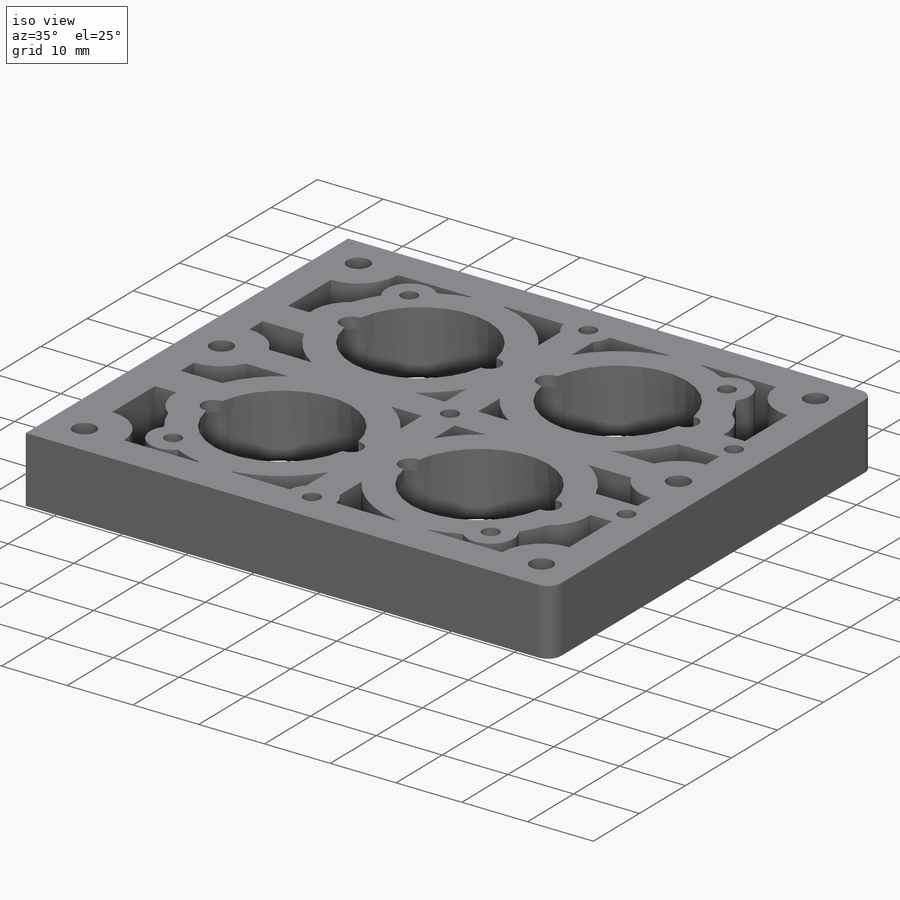
[diagram: iso view]
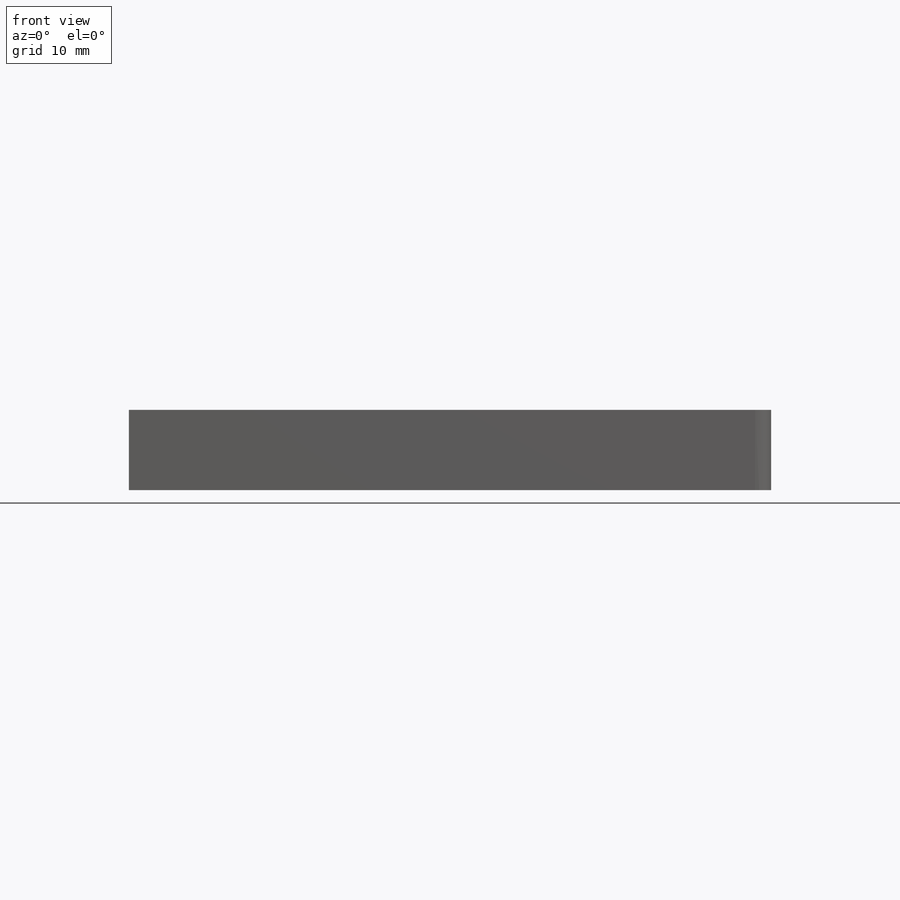
[diagram: front view]
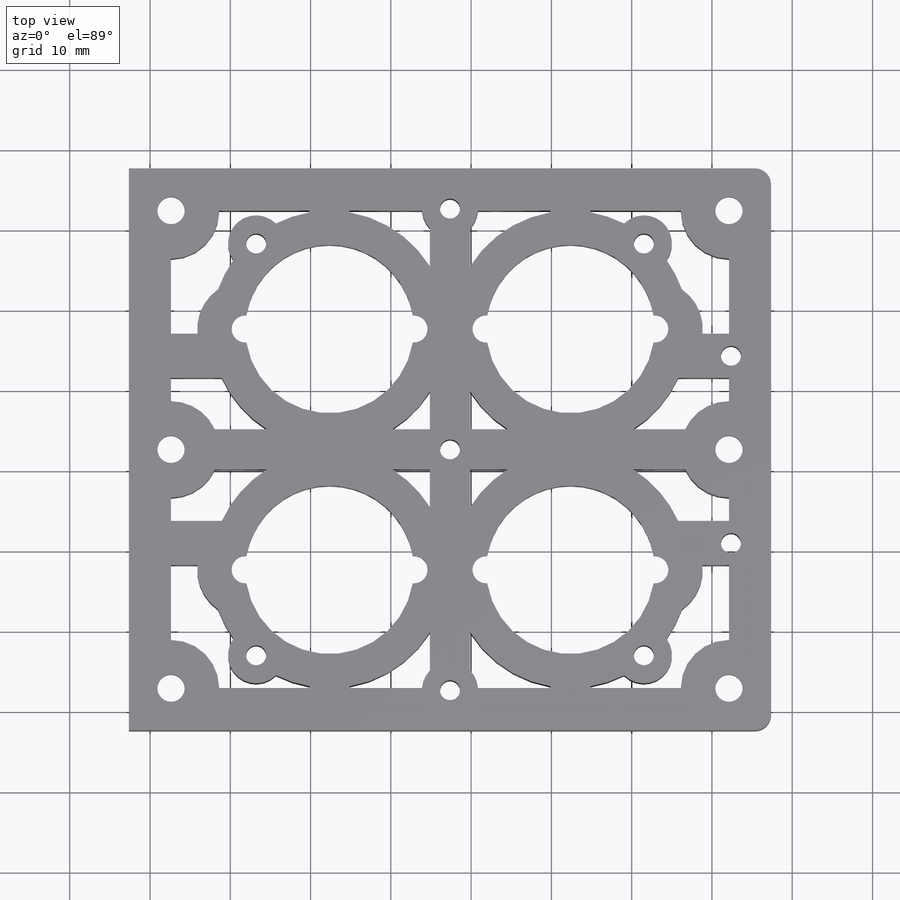
[diagram: top view]
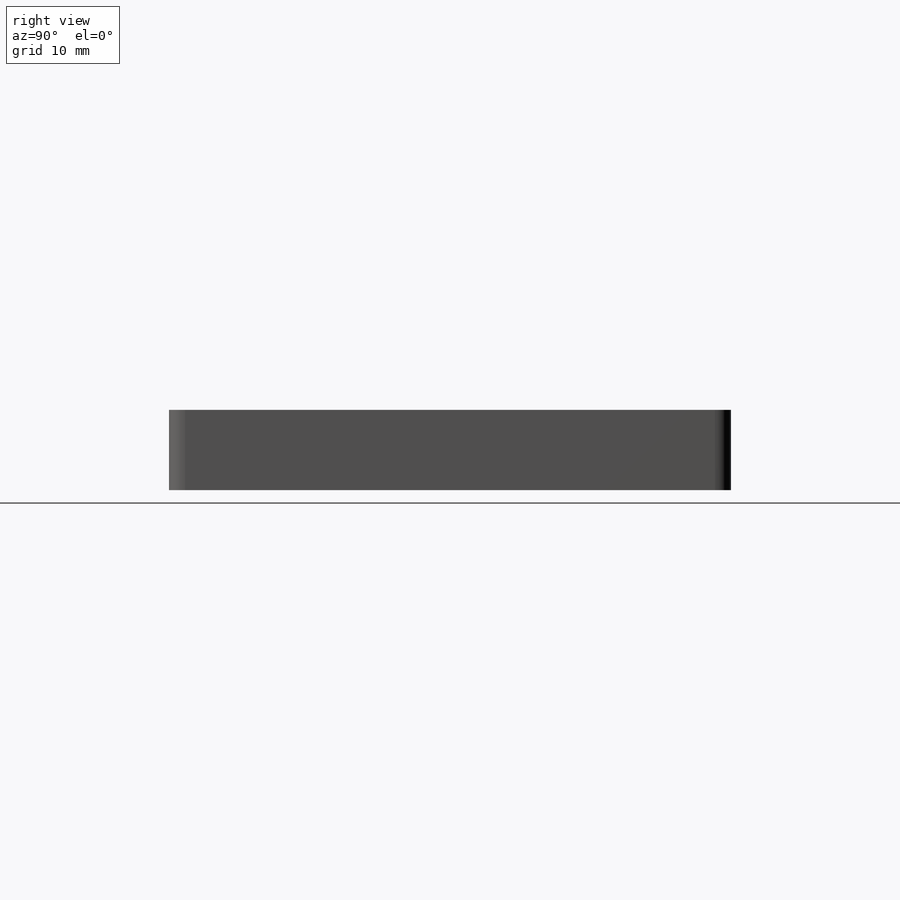
[diagram: right view]
SOLIDWORKS PART (.sldprt)
format: sldprt  version: not decoded by parser v0  size: 777,216 bytes
history: native  units: mm
features: sketch x18, hole x5, cut_extrude x2, fillet x2, material x1, extrude x1 (+11 scaffold rows collapsed)
feature tree (40):
  scaffold x11  (default folders/planes/origin — collapsed)
  material  "Material <not specified>"
  sketch  "Sketch1"  dims[D1=80.0mm D2=70.0mm]
  extrude  "Boss-Extrude1"  Depth=10mm
  sketch  "Sketch3"  dims[c1.D1=21.0mm c1.D2=20.0mm c1.D4=21.0mm c1.D6=21.0mm c1.D7=20.0mm c1.D8=21.0mm c2.D2=20.0mm c2.D3=25.0mm c2.D5=25.0mm c2.D7=20.0mm c2.D9=25.0mm c2.D10=20.0mm c2.D11=25.0mm c2.D12=20.0mm]
  cut_extrude  "Cut-Extrude2"  [1 undecoded]
  sketch  "Sketch4"  dims[c1.D1=9.35mm c1.D2=15.85mm c1.D3=15.85mm c1.D4=9.35mm c1.D5=9.35mm c1.D6=~14.322884mm c2.D6=90.0deg c3.D6=10.85mm]
  hole  "M3x0.5 Tapped Hole1"  Diameter=2.5mm Depth=10mm
  sketch  "3DSketch1"
  sketch  "Sketch5"  dims[hole-wizard template sketch: 60 standard entries collapsed; hole parameters kept: c18.Thru Tap Drill Depth=10.0mm]
  sketch  "Sketch10"  dims[D1=5.25mm D2=5.25mm D3=5.25mm D4=35.0mm D5=5.25mm]
  hole  "CBORE for M3 SHCS1"  Diameter=3.4mm Depth=10mm
  sketch  "3DSketch3"
  sketch  "Sketch11"  dims[hole-wizard template sketch: 42 standard entries collapsed; hole parameters kept: c12.Thru Hole Depth=10.0mm c12.C'Bore Dia.=6.5mm c12.C'Bore Depth=6.0mm]
  fillet  "Fillet3"  Radius=1mm
  sketch  "Sketch12"  dims[D1=5.0mm D2=~23.333333mm D3=~23.333333mm D4=5.0mm]
  hole  "Tap Drill for M3x0.5 Tap1"  Diameter=2.5mm Depth=10mm
  sketch  "3DSketch4"
  sketch  "Sketch14"  dims[hole-wizard template sketch: 50 standard entries collapsed; hole parameters above]
  fillet  "Fillet4"  Radius=2mm
  sketch  "Sketch15"
  hole  "CBORE for M3 SHCS2"  Diameter=3.4mm Depth=10mm
  sketch  "3DSketch5"
  sketch  "Sketch16"  dims[hole-wizard template sketch: 42 standard entries collapsed; hole parameters kept: c12.Thru Hole Depth=10.0mm c12.C'Bore Dia.=6.5mm c12.C'Bore Depth=8.3mm]
  sketch  "Sketch18"  dims[D1=5.0mm D2=5.0mm D3=~23.333333mm D4=~23.333333mm D5=40.0mm D6=35.0mm D7=5.0mm D8=5.0mm D9=40.0mm D10=40.0mm]
  hole  "Tap Drill for M3x0.5 Tap2"  Diameter=2.5mm Depth=10mm
  sketch  "3DSketch6"
  sketch  "Sketch20"  dims[hole-wizard template sketch: 60 standard entries collapsed; hole parameters kept: c18.Thru Hole Depth=10.0mm]
  sketch  "Sketch21"  dims[c1.D1=12.0mm c1.D2=7.0mm c1.D3=7.0mm c1.D4=12.0mm c1.D5=7.0mm c1.D6=7.0mm c1.D7=12.0mm c1.D8=7.0mm c1.D9=12.0mm c1.D10=7.0mm c1.D11=7.0mm c1.D12=7.0mm c1.D13=7.0mm c1.D14=12.0mm c1.D15=12.0mm c1.D16=12.0mm c1.D17=12.0mm c1.D18=12.0mm c1.D19=12.0mm c1.D20=12.0mm c1.D21=12.0mm c1.D22=12.0mm c1.D23=12.0mm c2.D5=12.0mm c2.D7=7.0mm c2.D2=1.5mm c2.D4=1.5mm c2.D6=1.5mm c3.D7=1.5mm c3.D8=2.5mm c3.D9=2.5mm c3.D6=2.5mm c3.D10=2.5mm c3.D11=2.5mm c3.D12=2.5mm]
  cut_extrude  "Cut-Extrude3"  Depth=10mm
decode coverage: 21 of 28 modeling features carry decoded parameters
note: ~ marks probable driven/reference dimensions
note: 1 parameter value undecoded
summary: Diameter pulled from absorbed wizard sketch
note: suppression state not decoded; provenance and decode notes live in map.json
